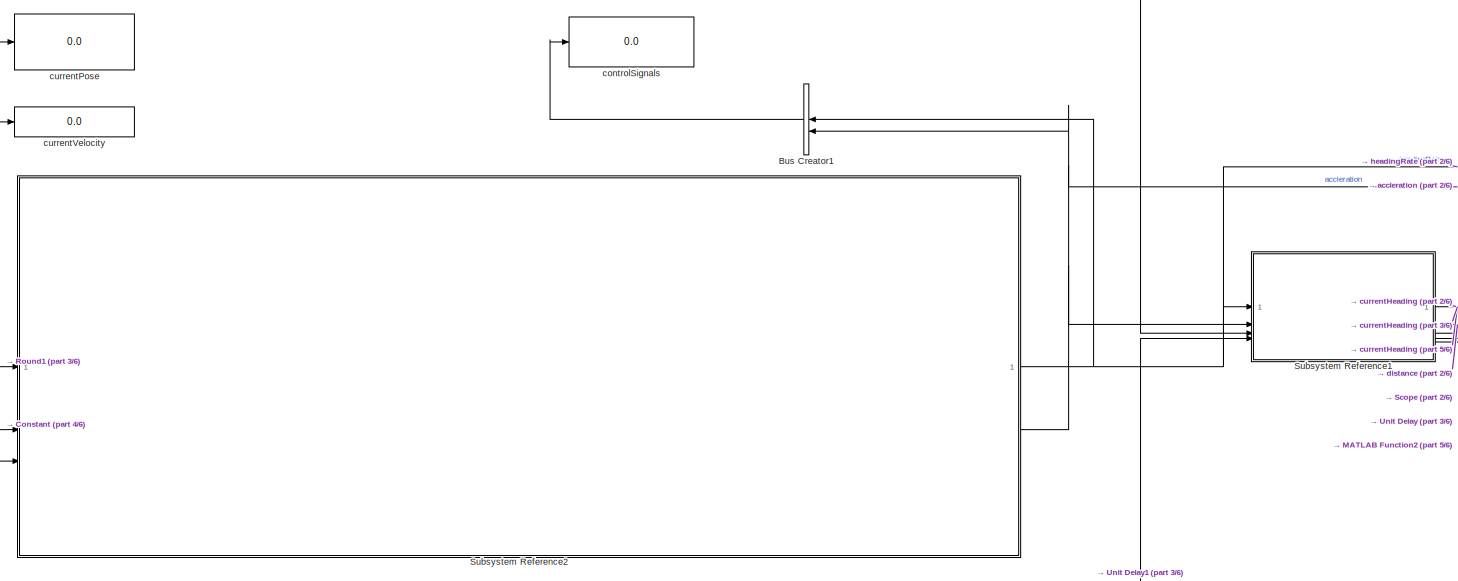
[diagram: root canvas - part 1/6, top center region]
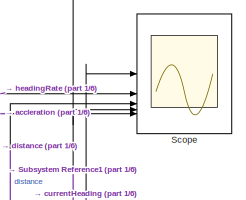
[diagram: root canvas - part 2/6, top right region]
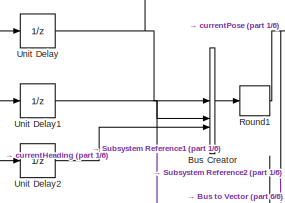
[diagram: root canvas - part 3/6, top left region]
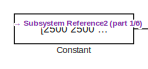
[diagram: root canvas - part 4/6, middle left region]
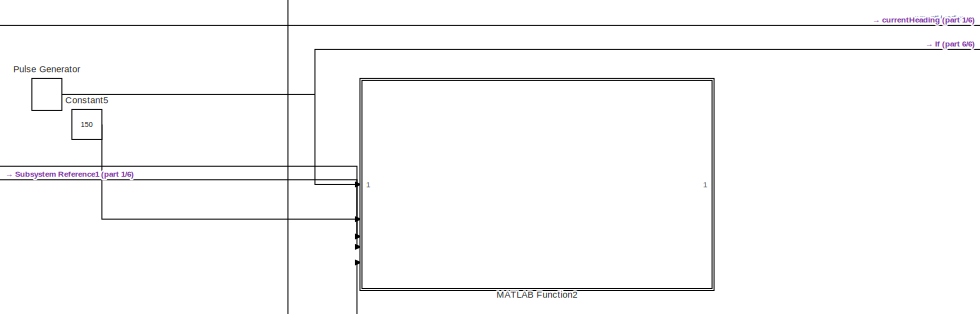
[diagram: root canvas - part 5/6, bottom left region]
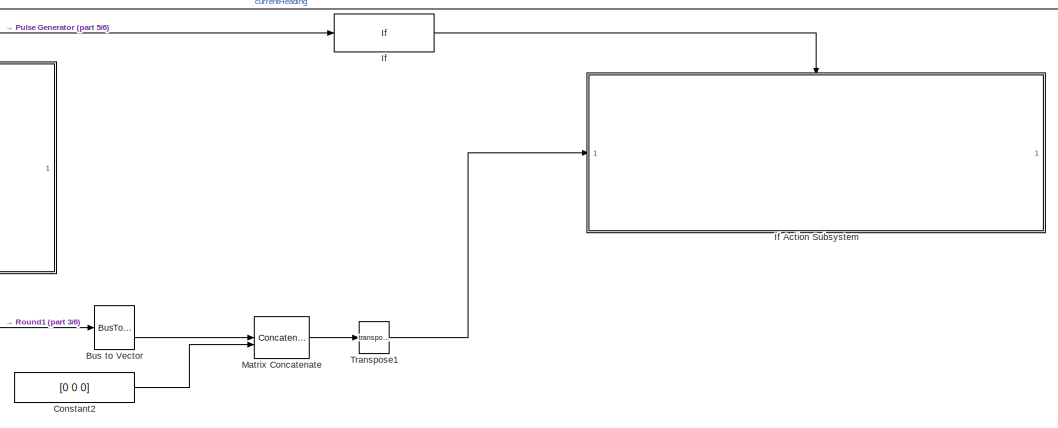
[diagram: root canvas - part 6/6, bottom center region]
MODEL slx_4d57d76e8009
KIND model
CONFIG AbsTol = auto
CONFIG EnableMultiTasking = off
CONFIG FixedStep = 0.01
CONFIG MaxStep = auto
CONFIG MinStep = auto
CONFIG RelTol = 1e-3
CONFIG SampleTimeConstraint = Unconstrained
CONFIG SolverName = ode4
CONFIG StartTime = 0.0
CONFIG StopTime = 40
BLOCK [BusCreator] Bus Creator
  DisplayOption = bar
  InheritFromInputs = on
  Inputs = 3
BLOCK [BusCreator] Bus Creator1
  DisplayOption = bar
  InheritFromInputs = on
  Inputs = 2
BLOCK [BusToVector] Bus to Vector
BLOCK [Constant] Constant
  Value = [2500 2500 180]
BLOCK [Constant] Constant2
  Value = [0 0 0]
BLOCK [Constant] Constant5
  Value = 150
BLOCK [If] If
  ShowElse = off
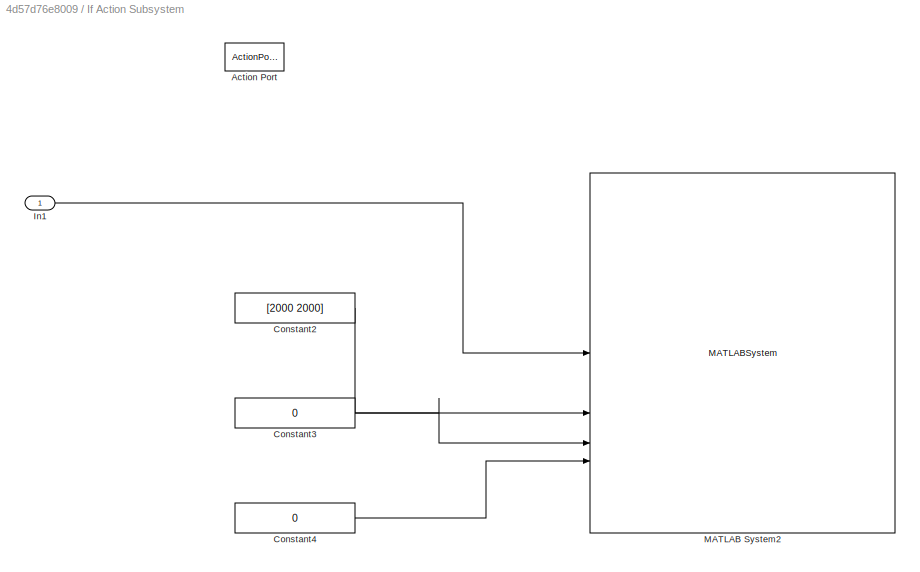
BLOCK [SubSystem] If Action Subsystem
  TreatAsAtomicUnit = on
BLOCK [ActionPort] If Action Subsystem/Action Port
  ActionPortLabel = if(u1 > 0)
BLOCK [Constant] If Action Subsystem/Constant2
  Value = [2000 2000]
BLOCK [Constant] If Action Subsystem/Constant3
  Value = 0
BLOCK [Constant] If Action Subsystem/Constant4
  Value = 0
BLOCK [Inport] If Action Subsystem/In1
BLOCK [MATLABSystem] If Action Subsystem/MATLAB System2
  MaskDisplay = disp('simulation_window_3');\nport_label('input',1,'robot_coordinates');\nport_label('input',2,'ball_coordinates');\nport_label('input',3,'scoreTeam1');\nport_label('input',4,'scoreTeam2');
  MaskType = simulation_window_3
  SimulateUsing = Code generation
  System = simulation_window_3
  border_strip_width = 1000
  centre_circle_diameter = 1500
  goal_area_length = 1000
  goal_area_width = 1000
  goal_depth = 500
  goal_width = 1000
  penalty_area_length = 1000
  penalty_area_width = 3000
  pitch_length = 9000
  pitch_width = 6000
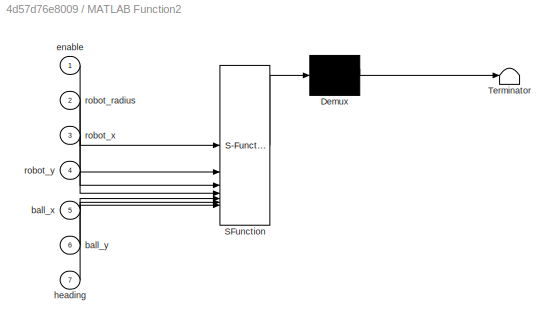
BLOCK [SubSystem] MATLAB Function2
  Commented = on
  ErrorFcn = Stateflow.Translate.translate
  InitFcn = figure(1); \nclf;\nhold on; \ngrid on; \naxis([-45,45,-30,30]);
  LibrarySourceBlock = simulink/User-Defined\nFunctions/MATLAB Function
  PermitHierarchicalResolution = ExplicitOnly
  SFBlockType = MATLAB Function
  TreatAsAtomicUnit = on
BLOCK [Demux] MATLAB Function2/ Demux 
  Outputs = 1
BLOCK [S-Function] MATLAB Function2/ SFunction 
  EnableBusSupport = on
  FunctionName = sf_sfun
  PortCounts = [7 1]
  SFcnIsStateOwnerBlock = off
  SFunctionDeploymentMode = off
  Tag = Stateflow S-Function 4
BLOCK [Terminator] MATLAB Function2/ Terminator 
BLOCK [Inport] MATLAB Function2/ball_x
  Port = 5
BLOCK [Inport] MATLAB Function2/ball_y
  Port = 6
BLOCK [Inport] MATLAB Function2/enable
BLOCK [Inport] MATLAB Function2/heading
  Port = 7
BLOCK [Inport] MATLAB Function2/robot_radius
  Port = 2
BLOCK [Inport] MATLAB Function2/robot_x
  Port = 3
BLOCK [Inport] MATLAB Function2/robot_y
  Port = 4
BLOCK [Concatenate] Matrix Concatenate
  ConcatenateDimension = 2
  Mode = Multidimensional array
BLOCK [DiscretePulseGenerator] Pulse Generator
  Period = 1
  PulseType = Time based
BLOCK [Rounding] Round1
  Operator = round
BLOCK [Scope] Scope
  Commented = on
  Floating = off
  NumInputPorts = 5
  ScopeSpecificationString = Simulink.scopes.TimeScopeBlockCfg('CurrentConfiguration', extmgr.ConfigurationSet(extmgr.Configuration('Core','General UI',true),extmgr.Configuration('Core','Source UI',true),extmgr.Configuration('Sources','WiredSimulink',true),extmgr.Configuration('Visuals','Time Domain',true,'SerializedDisplays',{struct('MinYLimReal','-275.35649','MaxYLimReal','1140.37299','YLabelReal','','MinYLimMag',' 0.00000'...<+1614ch>
BLOCK [SubSystem] Subsystem Reference1
  ReferencedSubsystem = RobotPlant
BLOCK [SubSystem] Subsystem Reference2
  ReferencedSubsystem = Controller_Subsystem
BLOCK [Math] Transpose1
  Operator = transpose
BLOCK [UnitDelay] Unit Delay
  HasFrameUpgradeWarning = on
  InitialCondition = 1000
  SampleTime = -1
BLOCK [UnitDelay] Unit Delay1
  HasFrameUpgradeWarning = on
  InitialCondition = 1000
  SampleTime = -1
BLOCK [UnitDelay] Unit Delay2
  HasFrameUpgradeWarning = on
  InitialCondition = -20
  SampleTime = -1
BLOCK [Display] controlSignals
  Commented = on
  Decimation = 1
  Format = long
BLOCK [Display] currentPose
  Commented = on
  Decimation = 1
  Format = long
BLOCK [Display] currentVelocity
  Commented = on
  Decimation = 1
LINE Bus Creator1:1 -> controlSignals:1
LINE Bus Creator:1 -> Round1:1
LINE Bus to Vector:1 -> Matrix Concatenate:1
LINE Constant2:1 -> Matrix Concatenate:2
LINE Constant5:1 -> MATLAB Function2:2
LINE Constant:1 -> Subsystem Reference2:2
LINE If Action Subsystem/Constant2:1 -> If Action Subsystem/MATLAB System2:2
LINE If Action Subsystem/Constant3:1 -> If Action Subsystem/MATLAB System2:3
LINE If Action Subsystem/Constant4:1 -> If Action Subsystem/MATLAB System2:4
LINE If Action Subsystem/In1:1 -> If Action Subsystem/MATLAB System2:1
LINE If:1 -> If Action Subsystem:ifaction
LINE Matrix Concatenate:1 -> Transpose1:1
NET Pulse Generator:1 -> If:1, MATLAB Function2:1
NET Round1:1 -> Bus to Vector:1, Subsystem Reference2:1, currentPose:1
NET Subsystem Reference1:1 -> MATLAB Function2:7, Scope:1, Unit Delay2:1
LINE Subsystem Reference1:2 -> Scope:3
NET Subsystem Reference1:3 -> Scope:4, Subsystem Reference2:3, currentVelocity:1
NET Subsystem Reference1:4 -> MATLAB Function2:3, Unit Delay:1
NET Subsystem Reference1:5 -> MATLAB Function2:4, Unit Delay1:1
NET Subsystem Reference2:1 -> Bus Creator1:1, Scope:2, Subsystem Reference1:1
NET Subsystem Reference2:2 -> Bus Creator1:2, Scope:5, Subsystem Reference1:2
LINE Transpose1:1 -> If Action Subsystem:1
NET Unit Delay1:1 -> Bus Creator:2, Subsystem Reference1:4
LINE Unit Delay2:1 -> Bus Creator:3
NET Unit Delay:1 -> Bus Creator:1, Subsystem Reference1:3
note: NET lines group one-source signal fan-out (src -> all destinations, sorted); 1:1 wires keep LINE
CHART MATLAB Function2 states=1 transitions=1
  STATE_LABEL 'eML_blk_kernel()'
  STATE_LABEL 'SCRIPT:\nfunction plotRobotAndBall(enable, robot_radius, robot_x, robot_y, ball_x, ball_y, heading)\n\nif enable == 1\n    figure(1);\n    clf;\n    hold on;\n    grid on;\n    axis([-9000,9000,-9000,9000]);\n\n    theta = linspace(0, 2*pi, 360);\n    heading_line_length = 300; % L\n\n    % equation of circle for representing robot\n    robot_rep_x = robot_radius * cos(theta);\n    robot_rep_y = robot_radius * s...<+541ch>'
CHART  states=0 transitions=0
